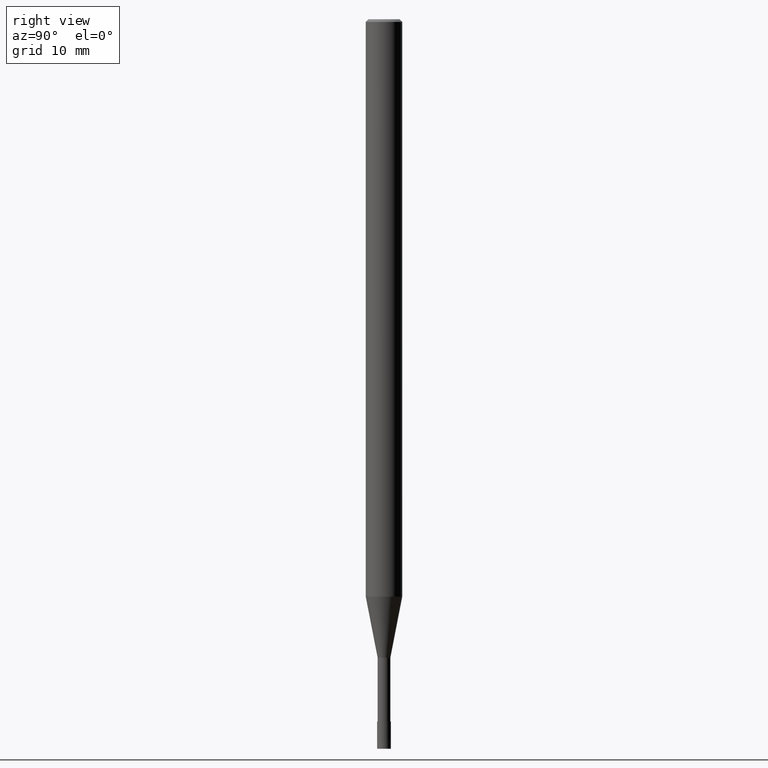
[diagram: clean part render]
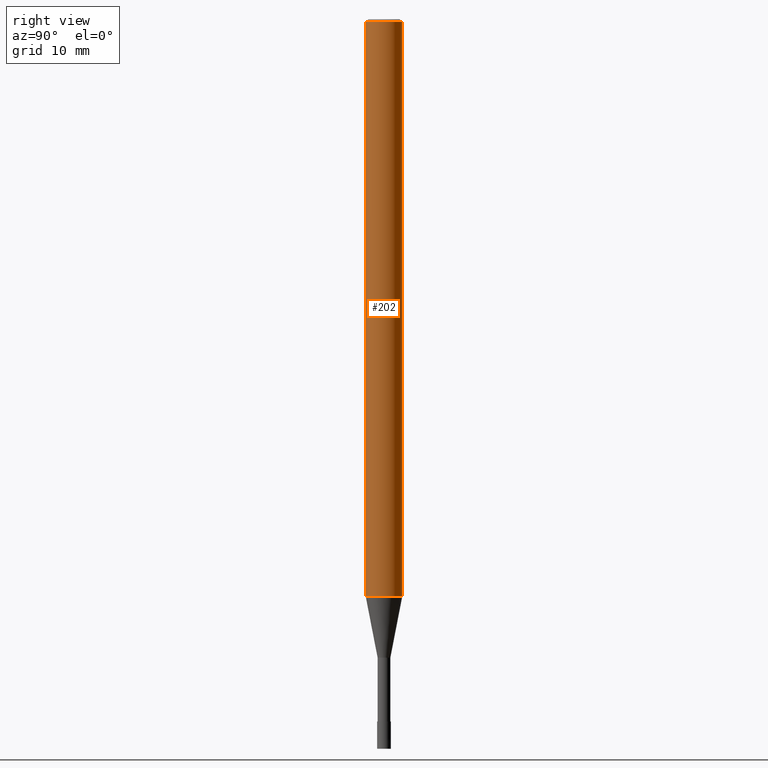
[diagram: same view with one face highlighted and labeled with its STEP entity id]
A machine part, right view. The second image highlights one B-rep face of the part: STEP entity #202.
In plain terms, the highlighted cylindrical surface (edge-blend (fillet) strip) has radius 2 mm, axis along (-0, -0, 1).
Its self-contained STEP definition (entity closure, byte-faithful):
#106=VERTEX_POINT('',#246);
#124=EDGE_CURVE('',#150,#106,#264,.T.);
#146=EDGE_CURVE('',#106,#164,#292,.T.);
#150=VERTEX_POINT('',#297);
#154=EDGE_CURVE('',#168,#150,#302,.T.);
#164=VERTEX_POINT('',#313);
#166=EDGE_CURVE('',#168,#164,#315,.T.);
#168=VERTEX_POINT('',#317);
#202=ADVANCED_FACE('',(#354),#355,.T.);
#246=CARTESIAN_POINT('',(2.44921270764475E-016,-2.0,-63.312));
#264=CIRCLE('',#421,2.0);
#292=LINE('',#453,#454);
#297=CARTESIAN_POINT('',(0.0,2.0,-63.312));
#302=LINE('',#465,#466);
#313=CARTESIAN_POINT('',(2.44921270764475E-016,-2.0,-0.299999999999997));
#315=CIRCLE('',#483,2.0);
#317=CARTESIAN_POINT('',(0.0,2.0,-0.299999999999997));
#354=FACE_OUTER_BOUND('',#530,.T.);
#355=CYLINDRICAL_SURFACE('',#531,2.0);
#421=AXIS2_PLACEMENT_3D('',#582,#583,#584);
#453=CARTESIAN_POINT('',(2.44921270764475E-016,-2.0,-31.806));
#454=VECTOR('',#626,1.0);
#465=CARTESIAN_POINT('',(-2.44921270764475E-016,2.0,-31.806));
#466=VECTOR('',#641,1.0);
#483=AXIS2_PLACEMENT_3D('',#654,#655,#656);
#530=EDGE_LOOP('',(#703,#704,#705,#706));
#531=AXIS2_PLACEMENT_3D('',#707,#708,#709);
#582=CARTESIAN_POINT('',(0.0,0.0,-63.312));
#583=DIRECTION('',(0.0,0.0,-1.0));
#584=DIRECTION('',(0.0,1.0,0.0));
#626=DIRECTION('',(-0.0,-0.0,1.0));
#641=DIRECTION('',(0.0,0.0,-1.0));
#654=CARTESIAN_POINT('',(0.0,0.0,-0.299999999999997));
#655=DIRECTION('',(0.0,0.0,-1.0));
#656=DIRECTION('',(0.0,1.0,0.0));
#703=ORIENTED_EDGE('',*,*,#154,.F.);
#704=ORIENTED_EDGE('',*,*,#166,.T.);
#705=ORIENTED_EDGE('',*,*,#146,.F.);
#706=ORIENTED_EDGE('',*,*,#124,.F.);
#707=CARTESIAN_POINT('',(0.0,0.0,-31.806));
#708=DIRECTION('',(-0.0,-0.0,1.0));
#709=DIRECTION('',(0.0,1.0,0.0));